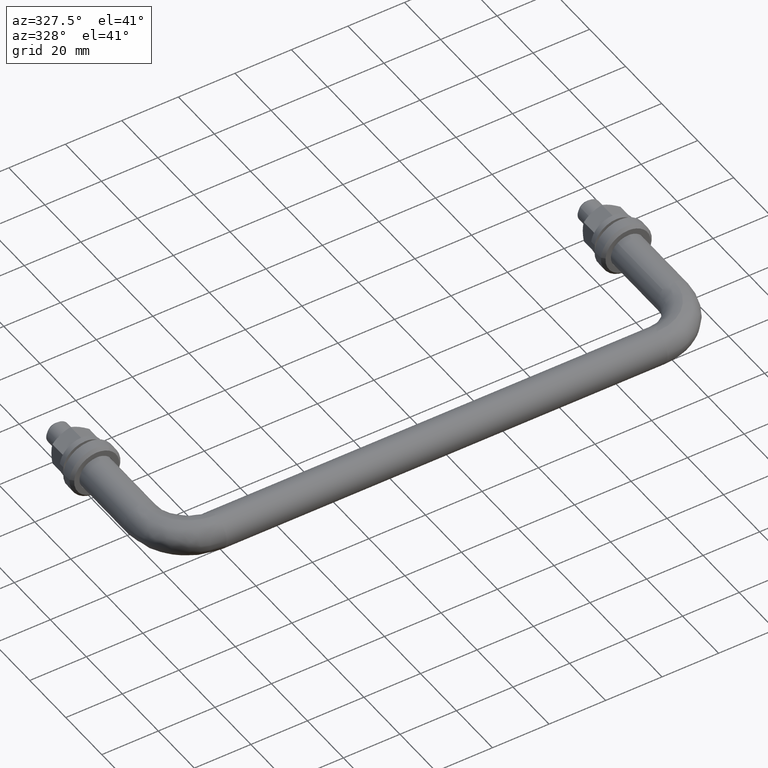
[diagram: clean part render]
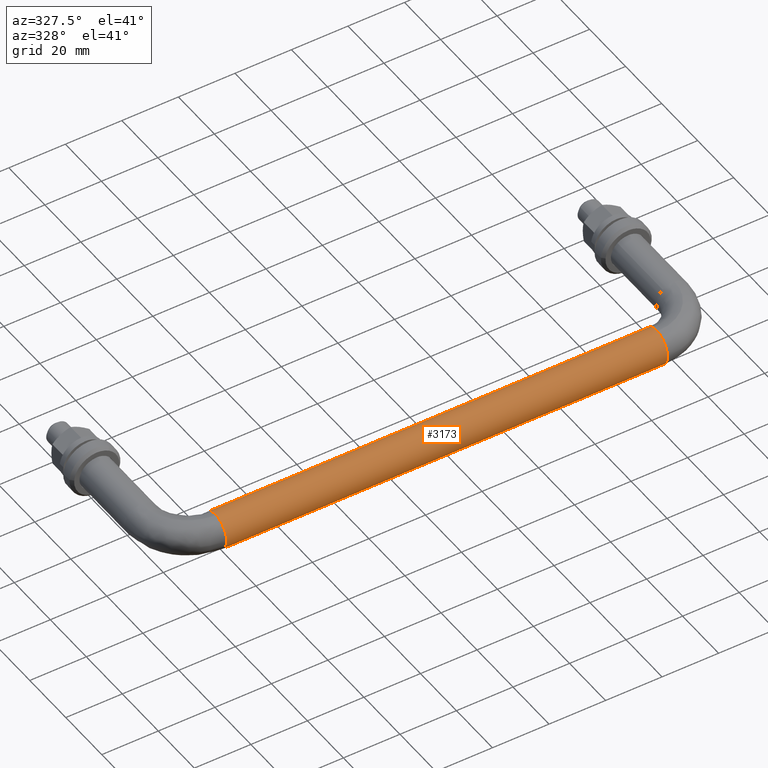
[diagram: same view with one face highlighted and labeled with its STEP entity id]
A machine part, auxiliary view. The second image highlights one B-rep face of the part: STEP entity #3173.
In plain terms, the highlighted face is a freeform B-spline surface patch.
Its self-contained STEP definition (entity closure, byte-faithful):
#2952=CARTESIAN_POINT('',(172.0,-48.467998580238500,-4.004620916760366));
#2953=VERTEX_POINT('',#2952);
#2969=CARTESIAN_POINT('',(16.0,-48.467998533679001,-4.004620968707411));
#2970=VERTEX_POINT('',#2969);
#2971=CARTESIAN_POINT('',(16.0,-48.467998533679001,-4.004620968707411));
#2972=CARTESIAN_POINT('',(172.0,-48.467998580238500,-4.004620916760366));
#2973=QUASI_UNIFORM_CURVE('',1,(#2971,#2972),.UNSPECIFIED.,.F.,.U.);
#2974=EDGE_CURVE('',#2970,#2953,#2973,.T.);
#3008=CARTESIAN_POINT('',(16.0,-40.024283299106493,4.493737499477844));
#3009=VERTEX_POINT('',#3008);
#3023=CARTESIAN_POINT('',(172.0,-40.024283343943772,4.493737539146402));
#3024=VERTEX_POINT('',#3023);
#3025=CARTESIAN_POINT('',(16.0,-40.024283299106493,4.493737499477844));
#3026=CARTESIAN_POINT('',(172.0,-40.024283343943772,4.493737539146402));
#3027=QUASI_UNIFORM_CURVE('',1,(#3025,#3026),.UNSPECIFIED.,.F.,.U.);
#3028=EDGE_CURVE('',#3009,#3024,#3027,.T.);
#3061=CARTESIAN_POINT('',(12.099999999496250,-40.024279710705578,4.493734324734011));
#3062=CARTESIAN_POINT('',(12.099999999496250,-44.518014035439599,8.469454614028436));
#3063=CARTESIAN_POINT('',(12.099999999496250,-48.493734324734007,3.975720289294424));
#3064=CARTESIAN_POINT('',(12.099999999496248,-52.034080247159984,-0.025912832602382));
#3065=CARTESIAN_POINT('',(12.099999999496248,-48.467994806516181,-4.004625127142923));
#3066=CARTESIAN_POINT('',(175.997500001134800,-40.024279710705557,4.493734324734011));
#3067=CARTESIAN_POINT('',(175.997500001134740,-44.518014035439563,8.469454614028436));
#3068=CARTESIAN_POINT('',(175.997500001134800,-48.493734324733992,3.975720289294424));
#3069=CARTESIAN_POINT('',(175.997500001134820,-52.034080247159977,-0.025912832602382));
#3070=CARTESIAN_POINT('',(175.997500001134800,-48.467994806516145,-4.004625127142923));
#3078=(BOUNDED_SURFACE()B_SPLINE_SURFACE(2,1,((#3061,#3066),(#3062,#3067),(#3063,#3068),(#3064,#3069),(#3065,#3070)),.UNSPECIFIED.,.F.,.F.,.U.)B_SPLINE_SURFACE_WITH_KNOTS((3,2,3),(2,2),(0.0,9.941125496954280,19.086960954152222),(0.0,163.897500001638600),.UNSPECIFIED.)GEOMETRIC_REPRESENTATION_ITEM()RATIONAL_B_SPLINE_SURFACE(((1.0,1.0),(0.707106781186548,0.707106781186548),(1.0,1.0),(0.730538238691624,0.730538238691624),(0.956886118190660,0.956886118190660)))REPRESENTATION_ITEM('')SURFACE());
#3079=CARTESIAN_POINT('',(172.0,-49.999999999999993,0.0));
#3080=VERTEX_POINT('',#3079);
#3081=CARTESIAN_POINT('',(171.999999999999970,-48.467998580238500,-4.004620916760366));
#3082=CARTESIAN_POINT('',(171.999999999999970,-50.0,-2.295350473769441));
#3083=CARTESIAN_POINT('',(172.0,-49.999999999999993,0.0));
#3091=(BOUNDED_CURVE()B_SPLINE_CURVE(2,(#3081,#3082,#3083),.UNSPECIFIED.,.F.,.U.)B_SPLINE_CURVE_WITH_KNOTS((3,3),(0.383246101980459,0.500000000000000),.UNSPECIFIED.)CURVE()GEOMETRIC_REPRESENTATION_ITEM()RATIONAL_B_SPLINE_CURVE((0.854190709346819,0.863214300000157,1.0))REPRESENTATION_ITEM(''));
#3092=EDGE_CURVE('',#2953,#3080,#3091,.T.);
#3093=ORIENTED_EDGE('',*,*,#3092,.T.);
#3094=CARTESIAN_POINT('',(172.000000001094800,-44.418399514859161,5.985394042664661));
#3095=VERTEX_POINT('',#3094);
#3096=CARTESIAN_POINT('',(172.0,-49.999999999999993,0.0));
#3097=CARTESIAN_POINT('',(172.000000000000030,-49.999999999999993,5.595221073466878));
#3098=CARTESIAN_POINT('',(172.000000001094780,-44.418399514859161,5.985394042664661));
#3106=(BOUNDED_CURVE()B_SPLINE_CURVE(2,(#3096,#3097,#3098),.UNSPECIFIED.,.F.,.U.)B_SPLINE_CURVE_WITH_KNOTS((3,3),(0.500000000000000,0.737833686224436),.UNSPECIFIED.)CURVE()GEOMETRIC_REPRESENTATION_ITEM()RATIONAL_B_SPLINE_CURVE((1.0,0.721360504397826,0.972879875729912))REPRESENTATION_ITEM(''));
#3107=EDGE_CURVE('',#3080,#3095,#3106,.T.);
#3108=ORIENTED_EDGE('',*,*,#3107,.T.);
#3109=CARTESIAN_POINT('',(172.000000001094860,-44.418399514859168,5.985394042664661));
#3110=CARTESIAN_POINT('',(172.000000000000030,-44.209454700674584,6.000000000000001));
#3111=CARTESIAN_POINT('',(172.0,-44.0,6.0));
#3112=CARTESIAN_POINT('',(172.000000000000030,-41.726806121522053,6.000000000000001));
#3113=CARTESIAN_POINT('',(171.999999999999970,-40.024283343943765,4.493737539146402));
#3121=(BOUNDED_CURVE()B_SPLINE_CURVE(2,(#3109,#3110,#3111,#3112,#3113),.UNSPECIFIED.,.F.,.U.)B_SPLINE_CURVE_WITH_KNOTS((3,2,3),(0.737833686224437,0.750000000000000,0.865779765950736),.UNSPECIFIED.)CURVE()GEOMETRIC_REPRESENTATION_ITEM()RATIONAL_B_SPLINE_CURVE((0.972879875729914,0.985746276788723,1.0,0.864355566708882,0.854350179329492))REPRESENTATION_ITEM(''));
#3122=EDGE_CURVE('',#3095,#3024,#3121,.T.);
#3123=ORIENTED_EDGE('',*,*,#3122,.T.);
#3124=ORIENTED_EDGE('',*,*,#3028,.F.);
#3125=CARTESIAN_POINT('',(15.999999999535239,-44.075396242597783,5.999526265181453));
#3126=VERTEX_POINT('',#3125);
#3127=CARTESIAN_POINT('',(15.999999999535246,-44.075396242597783,5.999526265181453));
#3128=CARTESIAN_POINT('',(16.0,-44.037699611249401,6.0));
#3129=CARTESIAN_POINT('',(16.0,-44.0,6.0));
#3130=CARTESIAN_POINT('',(15.999999999999996,-41.726806087292310,6.0));
#3131=CARTESIAN_POINT('',(16.0,-40.024283299106486,4.493737499477844));
#3139=(BOUNDED_CURVE()B_SPLINE_CURVE(2,(#3127,#3128,#3129,#3130,#3131),.UNSPECIFIED.,.F.,.U.)B_SPLINE_CURVE_WITH_KNOTS((3,2,3),(0.747784295728396,0.750000000000000,0.865779767457664),.UNSPECIFIED.)CURVE()GEOMETRIC_REPRESENTATION_ITEM()RATIONAL_B_SPLINE_CURVE((0.994854295199036,0.997404140975804,1.0,0.864355564943408,0.854350179069043))REPRESENTATION_ITEM(''));
#3140=EDGE_CURVE('',#3126,#3009,#3139,.T.);
#3141=ORIENTED_EDGE('',*,*,#3140,.F.);
#3142=CARTESIAN_POINT('',(16.0,-49.999999999999993,0.0));
#3143=VERTEX_POINT('',#3142);
#3144=CARTESIAN_POINT('',(16.0,-49.999999999999993,0.0));
#3145=CARTESIAN_POINT('',(16.000000000000004,-49.999999999999993,5.925071572929852));
#3146=CARTESIAN_POINT('',(15.999999999535245,-44.075396242597783,5.999526265181453));
#3154=(BOUNDED_CURVE()B_SPLINE_CURVE(2,(#3144,#3145,#3146),.UNSPECIFIED.,.F.,.U.)B_SPLINE_CURVE_WITH_KNOTS((3,3),(0.500000000000000,0.747784295728395),.UNSPECIFIED.)CURVE()GEOMETRIC_REPRESENTATION_ITEM()RATIONAL_B_SPLINE_CURVE((1.0,0.709702640210744,0.994854295199034))REPRESENTATION_ITEM(''));
#3155=EDGE_CURVE('',#3143,#3126,#3154,.T.);
#3156=ORIENTED_EDGE('',*,*,#3155,.F.);
#3157=CARTESIAN_POINT('',(16.000000000000004,-48.467998533679001,-4.004620968707411));
#3158=CARTESIAN_POINT('',(16.0,-49.999999999999986,-2.295350513753448));
#3159=CARTESIAN_POINT('',(16.0,-49.999999999999993,0.0));
#3167=(BOUNDED_CURVE()B_SPLINE_CURVE(2,(#3157,#3158,#3159),.UNSPECIFIED.,.F.,.U.)B_SPLINE_CURVE_WITH_KNOTS((3,3),(0.383246100224852,0.500000000000000),.UNSPECIFIED.)CURVE()GEOMETRIC_REPRESENTATION_ITEM()RATIONAL_B_SPLINE_CURVE((0.854190709075447,0.863214297943335,1.0))REPRESENTATION_ITEM(''));
#3168=EDGE_CURVE('',#2970,#3143,#3167,.T.);
#3169=ORIENTED_EDGE('',*,*,#3168,.F.);
#3170=ORIENTED_EDGE('',*,*,#2974,.T.);
#3171=EDGE_LOOP('',(#3093,#3108,#3123,#3124,#3141,#3156,#3169,#3170));
#3172=FACE_OUTER_BOUND('',#3171,.T.);
#3173=ADVANCED_FACE('',(#3172),#3078,.T.);